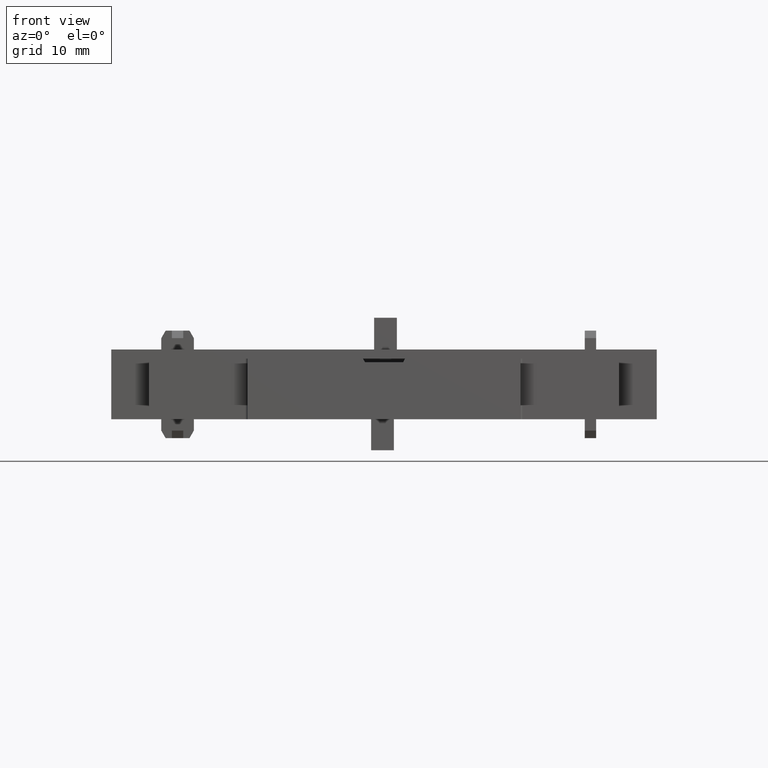
[diagram: clean part render]
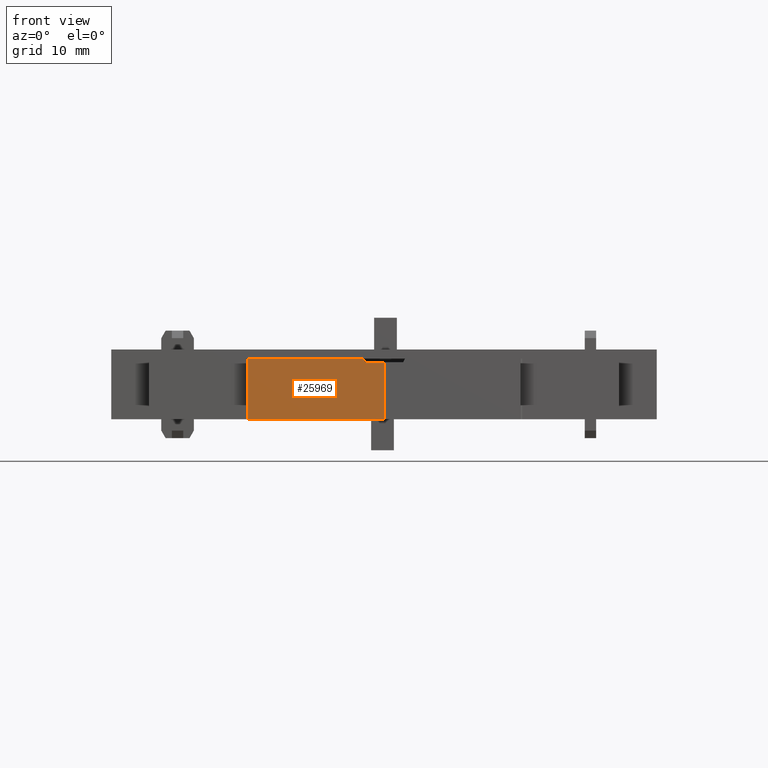
[diagram: same view with one face highlighted and labeled with its STEP entity id]
A machine part, front view. The second image highlights one B-rep face of the part: STEP entity #25969.
In plain terms, the highlighted planar face has unit normal (0, 1, 0).
Its self-contained STEP definition (entity closure, byte-faithful):
#13724=DIRECTION('',(5.000000000031E-1,0.E0,-8.660254037826E-1));
#13725=VECTOR('',#13724,5.773502691922E-1);
#13726=CARTESIAN_POINT('',(1.009243033318E1,1.701970650536E1,1.26E1));
#13727=LINE('',#13726,#13725);
#13728=DIRECTION('',(1.E0,0.E0,-4.973799150321E-14));
#13729=VECTOR('',#13728,2.5E0);
#13730=CARTESIAN_POINT('',(1.038110546778E1,1.701970650536E1,1.21E1));
#13731=LINE('',#13730,#13729);
#13732=DIRECTION('',(0.E0,0.E0,-1.E0));
#13733=VECTOR('',#13732,7.5E0);
#13734=CARTESIAN_POINT('',(1.288110546778E1,1.701970650536E1,1.21E1));
#13735=LINE('',#13734,#13733);
#13736=DIRECTION('',(-1.E0,0.E0,0.E0));
#13737=VECTOR('',#13736,1.8E1);
#13738=CARTESIAN_POINT('',(1.288110546778E1,1.701970650536E1,4.6E0));
#13739=LINE('',#13738,#13737);
#13740=DIRECTION('',(0.E0,0.E0,1.E0));
#13741=VECTOR('',#13740,8.E0);
#13742=CARTESIAN_POINT('',(-5.118894532220E0,1.701970650536E1,4.6E0));
#13743=LINE('',#13742,#13741);
#13744=DIRECTION('',(1.E0,0.E0,8.676648111542E-14));
#13745=VECTOR('',#13744,1.521132486540E1);
#13746=CARTESIAN_POINT('',(-5.118894532220E0,1.701970650536E1,1.26E1));
#13747=LINE('',#13746,#13745);
#16284=CARTESIAN_POINT('',(1.288110546778E1,1.701970650536E1,4.6E0));
#16285=VERTEX_POINT('',#16284);
#16288=CARTESIAN_POINT('',(1.288110546778E1,1.701970650536E1,1.21E1));
#16289=VERTEX_POINT('',#16288);
#16360=CARTESIAN_POINT('',(1.009243033318E1,1.701970650536E1,1.26E1));
#16361=VERTEX_POINT('',#16360);
#16362=CARTESIAN_POINT('',(-5.118894532220E0,1.701970650536E1,1.26E1));
#16363=VERTEX_POINT('',#16362);
#17496=CARTESIAN_POINT('',(-5.118894532220E0,1.701970650536E1,4.6E0));
#17497=VERTEX_POINT('',#17496);
#17498=CARTESIAN_POINT('',(1.038110546778E1,1.701970650536E1,1.21E1));
#17499=VERTEX_POINT('',#17498);
#25955=CARTESIAN_POINT('',(3.881105467780E0,1.701970650536E1,8.6E0));
#25956=DIRECTION('',(0.E0,1.E0,0.E0));
#25957=DIRECTION('',(1.E0,0.E0,0.E0));
#25958=AXIS2_PLACEMENT_3D('',#25955,#25956,#25957);
#25959=PLANE('',#25958);
#25961=ORIENTED_EDGE('',*,*,#25960,.T.);
#25962=ORIENTED_EDGE('',*,*,#19768,.T.);
#25963=ORIENTED_EDGE('',*,*,#19738,.T.);
#25964=ORIENTED_EDGE('',*,*,#20676,.T.);
#25965=ORIENTED_EDGE('',*,*,#25949,.T.);
#25966=ORIENTED_EDGE('',*,*,#20207,.T.);
#25967=EDGE_LOOP('',(#25961,#25962,#25963,#25964,#25965,#25966));
#25968=FACE_OUTER_BOUND('',#25967,.F.);
#25969=ADVANCED_FACE('',(#25968),#25959,.F.);
#19738=EDGE_CURVE('',#16289,#16285,#13735,.T.);
#19768=EDGE_CURVE('',#17499,#16289,#13731,.T.);
#20207=EDGE_CURVE('',#16363,#16361,#13747,.T.);
#20676=EDGE_CURVE('',#16285,#17497,#13739,.T.);
#25949=EDGE_CURVE('',#17497,#16363,#13743,.T.);
#25960=EDGE_CURVE('',#16361,#17499,#13727,.T.);